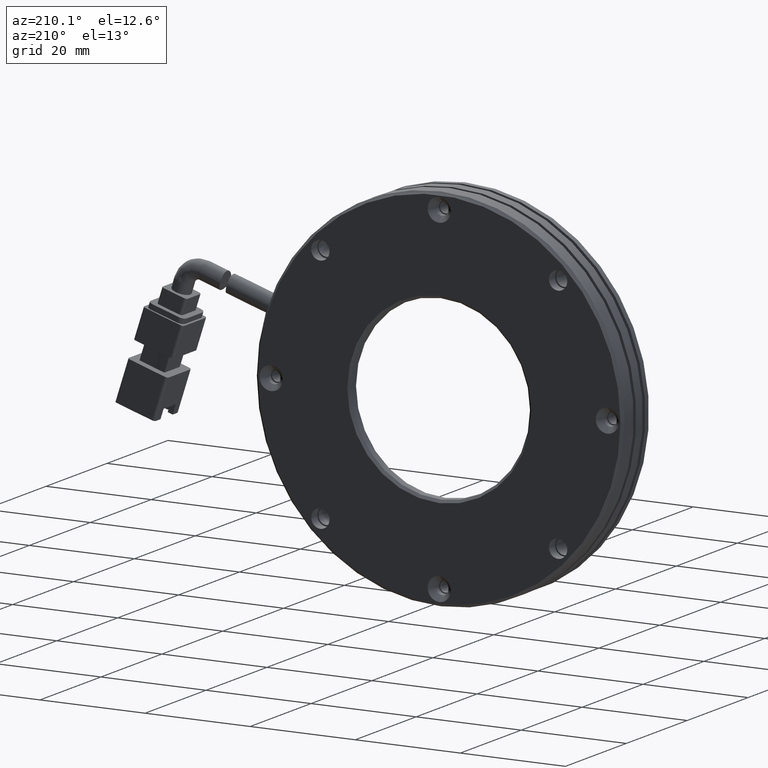
[diagram: clean part render]
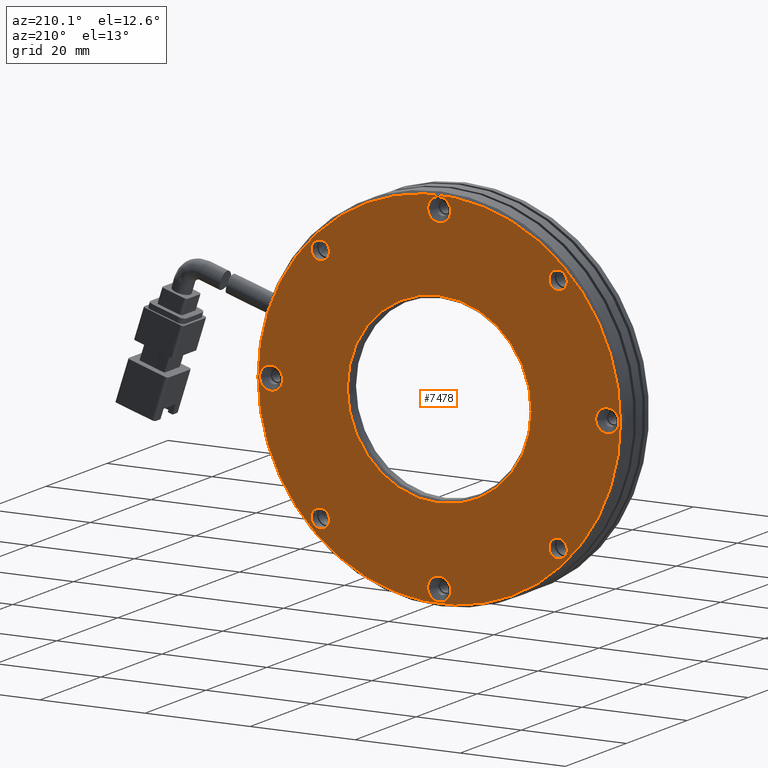
[diagram: same view with one face highlighted and labeled with its STEP entity id]
A machine part, auxiliary view. The second image highlights one B-rep face of the part: STEP entity #7478.
In plain terms, the highlighted planar face has unit normal (0, -1, 0).
Its self-contained STEP definition (entity closure, byte-faithful):
#110 = DIRECTION ( 'NONE',  ( -1.982541115402065400E-016, -1.000000000000000000, 0.0000000000000000000 ) ) ;
#143 = VERTEX_POINT ( 'NONE', #33336 ) ;
#212 = AXIS2_PLACEMENT_3D ( 'NONE', #7293, #29026, #10388 ) ;
#552 = CIRCLE ( 'NONE', #212, 2.199999999977081600 ) ;
#564 = CARTESIAN_POINT ( 'NONE',  ( -37.70929214490434600, 13.26020291534246800, -2.199999999959364700 ) ) ;
#943 = DIRECTION ( 'NONE',  ( 0.0000000000000000000, 0.0000000000000000000, 1.000000000000000000 ) ) ;
#1103 = DIRECTION ( 'NONE',  ( -0.0000000000000000000, 1.000000000000000000, 0.0000000000000000000 ) ) ;
#1303 = FACE_OUTER_BOUND ( 'NONE', #31803, .T. ) ;
#1769 = CIRCLE ( 'NONE', #23377, 17.50000000000000700 ) ;
#2228 = DIRECTION ( 'NONE',  ( 0.0000000000000000000, 0.0000000000000000000, 1.000000000000000000 ) ) ;
#2298 = EDGE_CURVE ( 'NONE', #16188, #25205, #18370, .T. ) ;
#2355 = AXIS2_PLACEMENT_3D ( 'NONE', #4401, #26062, #7508 ) ;
#2577 = ORIENTED_EDGE ( 'NONE', *, *, #30779, .F. ) ;
#2722 = DIRECTION ( 'NONE',  ( 0.0000000000000000000, 0.0000000000000000000, 1.000000000000000000 ) ) ;
#2983 = VERTEX_POINT ( 'NONE', #32999 ) ;
#3518 = CARTESIAN_POINT ( 'NONE',  ( 16.91812485306521900, 13.26020291540423700, 24.37741699796944800 ) ) ;
#3852 = VERTEX_POINT ( 'NONE', #38358 ) ;
#3877 = DIRECTION ( 'NONE',  ( -1.982541115402065400E-016, -1.000000000000000000, 0.0000000000000000000 ) ) ;
#4401 = CARTESIAN_POINT ( 'NONE',  ( -5.709292144904676300, 13.26020291539931200, 31.99999999999997900 ) ) ;
#4536 = EDGE_LOOP ( 'NONE', ( #10967, #6340 ) ) ;
#4547 = ORIENTED_EDGE ( 'NONE', *, *, #21877, .F. ) ;
#4617 = DIRECTION ( 'NONE',  ( -0.0000000000000000000, 1.000000000000000000, -0.0000000000000000000 ) ) ;
#4657 = CARTESIAN_POINT ( 'NONE',  ( -5.709292144904231300, 13.26020291539931200, -32.00000000000002100 ) ) ;
#4795 = CARTESIAN_POINT ( 'NONE',  ( -37.70929214490434600, 13.26020291534246800, 2.199999999959324700 ) ) ;
#4802 = CIRCLE ( 'NONE', #36469, 1.749999999999991100 ) ;
#5172 = VERTEX_POINT ( 'NONE', #38534 ) ;
#6042 = ORIENTED_EDGE ( 'NONE', *, *, #27675, .F. ) ;
#6340 = ORIENTED_EDGE ( 'NONE', *, *, #2298, .F. ) ;
#6924 = ORIENTED_EDGE ( 'NONE', *, *, #19580, .F. ) ;
#6959 = ORIENTED_EDGE ( 'NONE', *, *, #15343, .F. ) ;
#7293 = CARTESIAN_POINT ( 'NONE',  ( -5.709292144904231300, 13.26020291539931200, -32.00000000000002100 ) ) ;
#7478 = ADVANCED_FACE ( 'NONE', ( #18703, #10450, #35296, #34331, #26968, #26007, #17720, #9485, #1303, #33340 ), #37788, .F. ) ;
#7480 = EDGE_LOOP ( 'NONE', ( #6924, #4547 ) ) ;
#7508 = DIRECTION ( 'NONE',  ( 0.0000000000000000000, 0.0000000000000000000, 1.000000000000000000 ) ) ;
#7594 = ORIENTED_EDGE ( 'NONE', *, *, #13458, .F. ) ;
#7730 = DIRECTION ( 'NONE',  ( 0.0000000000000000000, 0.0000000000000000000, 1.000000000000000000 ) ) ;
#7772 = DIRECTION ( 'NONE',  ( -0.0000000000000000000, 1.000000000000000000, 0.0000000000000000000 ) ) ;
#7864 = CARTESIAN_POINT ( 'NONE',  ( -37.70929214490434600, 13.26020291534246800, -1.994931997373328200E-014 ) ) ;
#7972 = VERTEX_POINT ( 'NONE', #18771 ) ;
#8416 = EDGE_CURVE ( 'NONE', #143, #36141, #30378, .T. ) ;
#8705 = EDGE_CURVE ( 'NONE', #35353, #13213, #17687, .T. ) ;
#8878 = EDGE_CURVE ( 'NONE', #13213, #35353, #18168, .T. ) ;
#8959 = EDGE_CURVE ( 'NONE', #12107, #23204, #10384, .T. ) ;
#9250 = CIRCLE ( 'NONE', #13845, 1.749999999999991100 ) ;
#9320 = CARTESIAN_POINT ( 'NONE',  ( 28.79070785509566100, 13.26020291540425900, -2.081668171172168500E-014 ) ) ;
#9357 = ORIENTED_EDGE ( 'NONE', *, *, #25839, .F. ) ;
#9438 = ORIENTED_EDGE ( 'NONE', *, *, #16494, .F. ) ;
#9485 = FACE_BOUND ( 'NONE', #19047, .T. ) ;
#10035 = DIRECTION ( 'NONE',  ( -0.0000000000000000000, 1.000000000000000000, -0.0000000000000000000 ) ) ;
#10040 = CARTESIAN_POINT ( 'NONE',  ( 26.29070785509565800, 13.26020291534246800, -2.199999999958921500 ) ) ;
#10157 = AXIS2_PLACEMENT_3D ( 'NONE', #27124, #26962, #25369 ) ;
#10384 = CIRCLE ( 'NONE', #2355, 2.199999999998453000 ) ;
#10388 = DIRECTION ( 'NONE',  ( 0.0000000000000000000, 0.0000000000000000000, 1.000000000000000000 ) ) ;
#10450 = FACE_BOUND ( 'NONE', #40018, .T. ) ;
#10888 = DIRECTION ( 'NONE',  ( -0.0000000000000000000, 1.000000000000000000, 0.0000000000000000000 ) ) ;
#10962 = DIRECTION ( 'NONE',  ( 0.0000000000000000000, 0.0000000000000000000, 1.000000000000000000 ) ) ;
#10967 = ORIENTED_EDGE ( 'NONE', *, *, #20108, .F. ) ;
#11264 = DIRECTION ( 'NONE',  ( -0.0000000000000000000, 1.000000000000000000, -0.0000000000000000000 ) ) ;
#11334 = AXIS2_PLACEMENT_3D ( 'NONE', #32444, #13777, #35534 ) ;
#11360 = AXIS2_PLACEMENT_3D ( 'NONE', #22400, #3877, #25559 ) ;
#11403 = CARTESIAN_POINT ( 'NONE',  ( -28.33670914287390000, 13.26020291540423700, 22.62741699796946200 ) ) ;
#12107 = VERTEX_POINT ( 'NONE', #31218 ) ;
#12117 = ORIENTED_EDGE ( 'NONE', *, *, #12918, .F. ) ;
#12912 = CIRCLE ( 'NONE', #31623, 17.50000000000000700 ) ;
#12918 = EDGE_CURVE ( 'NONE', #40130, #12931, #23755, .T. ) ;
#12931 = VERTEX_POINT ( 'NONE', #4795 ) ;
#12988 = DIRECTION ( 'NONE',  ( 0.0000000000000000000, -1.000000000000000000, 0.0000000000000000000 ) ) ;
#13021 = CIRCLE ( 'NONE', #22403, 2.199999999959344700 ) ;
#13213 = VERTEX_POINT ( 'NONE', #9320 ) ;
#13446 = CARTESIAN_POINT ( 'NONE',  ( -28.33670914287374700, 13.26020291540423700, -22.62741699796966100 ) ) ;
#13458 = EDGE_CURVE ( 'NONE', #36141, #143, #39791, .T. ) ;
#13759 = ORIENTED_EDGE ( 'NONE', *, *, #8416, .F. ) ;
#13777 = DIRECTION ( 'NONE',  ( -0.0000000000000000000, 1.000000000000000000, 0.0000000000000000000 ) ) ;
#13845 = AXIS2_PLACEMENT_3D ( 'NONE', #13446, #35233, #16564 ) ;
#13957 = CIRCLE ( 'NONE', #16700, 2.199999999959123100 ) ;
#14539 = DIRECTION ( 'NONE',  ( 0.0000000000000000000, 0.0000000000000000000, 1.000000000000000000 ) ) ;
#15312 = CARTESIAN_POINT ( 'NONE',  ( 16.91812485306537200, 13.26020291540423700, -22.62741699796934800 ) ) ;
#15343 = EDGE_CURVE ( 'NONE', #5172, #19427, #9250, .T. ) ;
#16188 = VERTEX_POINT ( 'NONE', #34915 ) ;
#16494 = EDGE_CURVE ( 'NONE', #26678, #7972, #30204, .T. ) ;
#16522 = VERTEX_POINT ( 'NONE', #38753 ) ;
#16564 = DIRECTION ( 'NONE',  ( 0.0000000000000000000, 0.0000000000000000000, 1.000000000000000000 ) ) ;
#16700 = AXIS2_PLACEMENT_3D ( 'NONE', #26355, #7772, #29536 ) ;
#16918 = CARTESIAN_POINT ( 'NONE',  ( -28.33670914287390000, 13.26020291540423700, 20.87741699796946500 ) ) ;
#17172 = CARTESIAN_POINT ( 'NONE',  ( -28.33670914287374700, 13.26020291540423700, -20.87741699796966800 ) ) ;
#17687 = CIRCLE ( 'NONE', #26701, 34.50000000000000000 ) ;
#17720 = FACE_BOUND ( 'NONE', #28343, .T. ) ;
#17841 = AXIS2_PLACEMENT_3D ( 'NONE', #11403, #33203, #14539 ) ;
#18168 = CIRCLE ( 'NONE', #11360, 34.50000000000000000 ) ;
#18370 = CIRCLE ( 'NONE', #10157, 1.749999999999991100 ) ;
#18407 = DIRECTION ( 'NONE',  ( 0.0000000000000000000, 0.0000000000000000000, 1.000000000000000000 ) ) ;
#18611 = CARTESIAN_POINT ( 'NONE',  ( -5.709292144904342300, 13.26020291540426600, -2.081668171172168500E-014 ) ) ;
#18628 = EDGE_LOOP ( 'NONE', ( #13759, #7594 ) ) ;
#18703 = FACE_BOUND ( 'NONE', #7480, .T. ) ;
#18771 = CARTESIAN_POINT ( 'NONE',  ( -5.709292144904231300, 13.26020291539931200, -34.19999999997710200 ) ) ;
#19047 = EDGE_LOOP ( 'NONE', ( #34322, #12117 ) ) ;
#19126 = ORIENTED_EDGE ( 'NONE', *, *, #28634, .F. ) ;
#19427 = VERTEX_POINT ( 'NONE', #17172 ) ;
#19436 = DIRECTION ( 'NONE',  ( -0.0000000000000000000, 1.000000000000000000, 0.0000000000000000000 ) ) ;
#19508 = VERTEX_POINT ( 'NONE', #23970 ) ;
#19576 = AXIS2_PLACEMENT_3D ( 'NONE', #15312, #37112, #18407 ) ;
#19580 = EDGE_CURVE ( 'NONE', #2983, #3852, #34525, .T. ) ;
#19621 = CARTESIAN_POINT ( 'NONE',  ( 26.29070785509565800, 13.26020291534246800, 2.016616040823038200E-013 ) ) ;
#19866 = EDGE_CURVE ( 'NONE', #12931, #40130, #13021, .T. ) ;
#20108 = EDGE_CURVE ( 'NONE', #25205, #16188, #4802, .T. ) ;
#20722 = DIRECTION ( 'NONE',  ( -0.0000000000000000000, 1.000000000000000000, 0.0000000000000000000 ) ) ;
#21226 = DIRECTION ( 'NONE',  ( -0.0000000000000000000, 1.000000000000000000, -0.0000000000000000000 ) ) ;
#21547 = ORIENTED_EDGE ( 'NONE', *, *, #8878, .F. ) ;
#21596 = EDGE_CURVE ( 'NONE', #16522, #31588, #12912, .T. ) ;
#21722 = DIRECTION ( 'NONE',  ( 1.000000000000000000, -2.011273595335428600E-016, 0.0000000000000000000 ) ) ;
#21848 = AXIS2_PLACEMENT_3D ( 'NONE', #39939, #21226, #2722 ) ;
#21871 = AXIS2_PLACEMENT_3D ( 'NONE', #28673, #10035, #31864 ) ;
#21877 = EDGE_CURVE ( 'NONE', #3852, #2983, #31900, .T. ) ;
#22225 = CARTESIAN_POINT ( 'NONE',  ( -5.709292144904231300, 13.26020291539931200, -29.80000000002294100 ) ) ;
#22400 = CARTESIAN_POINT ( 'NONE',  ( -5.709292144904342300, 13.26020291540426600, -2.081668171172168500E-014 ) ) ;
#22403 = AXIS2_PLACEMENT_3D ( 'NONE', #38151, #19436, #943 ) ;
#22738 = DIRECTION ( 'NONE',  ( 0.0000000000000000000, 0.0000000000000000000, 1.000000000000000000 ) ) ;
#22810 = CARTESIAN_POINT ( 'NONE',  ( -40.20929214490434600, 13.26020291540427100, -1.656103408468463200E-014 ) ) ;
#23119 = AXIS2_PLACEMENT_3D ( 'NONE', #23153, #4617, #26260 ) ;
#23153 = CARTESIAN_POINT ( 'NONE',  ( -28.33670914287390000, 13.26020291540423700, 22.62741699796946200 ) ) ;
#23204 = VERTEX_POINT ( 'NONE', #34828 ) ;
#23377 = AXIS2_PLACEMENT_3D ( 'NONE', #39440, #20722, #2228 ) ;
#23755 = CIRCLE ( 'NONE', #30461, 2.199999999959344700 ) ;
#23970 = CARTESIAN_POINT ( 'NONE',  ( 26.29070785509565800, 13.26020291534246800, 2.199999999959324700 ) ) ;
#24587 = EDGE_CURVE ( 'NONE', #31588, #16522, #1769, .T. ) ;
#25205 = VERTEX_POINT ( 'NONE', #3518 ) ;
#25257 = CIRCLE ( 'NONE', #36341, 2.199999999959123100 ) ;
#25369 = DIRECTION ( 'NONE',  ( 0.0000000000000000000, 0.0000000000000000000, 1.000000000000000000 ) ) ;
#25559 = DIRECTION ( 'NONE',  ( 1.000000000000000000, -2.011273595335428600E-016, 0.0000000000000000000 ) ) ;
#25839 = EDGE_CURVE ( 'NONE', #19427, #5172, #30333, .T. ) ;
#25890 = ORIENTED_EDGE ( 'NONE', *, *, #8705, .F. ) ;
#26007 = FACE_BOUND ( 'NONE', #33737, .T. ) ;
#26062 = DIRECTION ( 'NONE',  ( -0.0000000000000000000, 1.000000000000000000, 0.0000000000000000000 ) ) ;
#26260 = DIRECTION ( 'NONE',  ( 0.0000000000000000000, 0.0000000000000000000, 1.000000000000000000 ) ) ;
#26299 = DIRECTION ( 'NONE',  ( -0.0000000000000000000, 1.000000000000000000, 0.0000000000000000000 ) ) ;
#26355 = CARTESIAN_POINT ( 'NONE',  ( 26.29070785509565800, 13.26020291534246800, 2.016616040823038200E-013 ) ) ;
#26678 = VERTEX_POINT ( 'NONE', #22225 ) ;
#26701 = AXIS2_PLACEMENT_3D ( 'NONE', #18611, #110, #21722 ) ;
#26962 = DIRECTION ( 'NONE',  ( -0.0000000000000000000, 1.000000000000000000, -0.0000000000000000000 ) ) ;
#26968 = FACE_BOUND ( 'NONE', #33443, .T. ) ;
#27124 = CARTESIAN_POINT ( 'NONE',  ( 16.91812485306521900, 13.26020291540423700, 22.62741699796945800 ) ) ;
#27675 = EDGE_CURVE ( 'NONE', #19508, #29353, #25257, .T. ) ;
#27681 = EDGE_CURVE ( 'NONE', #7972, #26678, #552, .T. ) ;
#28343 = EDGE_LOOP ( 'NONE', ( #9438, #29431 ) ) ;
#28502 = AXIS2_PLACEMENT_3D ( 'NONE', #4657, #26299, #7730 ) ;
#28634 = EDGE_CURVE ( 'NONE', #29353, #19508, #13957, .T. ) ;
#28673 = CARTESIAN_POINT ( 'NONE',  ( -28.33670914287374700, 13.26020291540423700, -22.62741699796966100 ) ) ;
#29026 = DIRECTION ( 'NONE',  ( -0.0000000000000000000, 1.000000000000000000, 0.0000000000000000000 ) ) ;
#29353 = VERTEX_POINT ( 'NONE', #10040 ) ;
#29431 = ORIENTED_EDGE ( 'NONE', *, *, #27681, .F. ) ;
#29536 = DIRECTION ( 'NONE',  ( 0.0000000000000000000, 0.0000000000000000000, 1.000000000000000000 ) ) ;
#29553 = CARTESIAN_POINT ( 'NONE',  ( -5.709292144904342300, 13.26020291540425200, -2.081668171172168500E-014 ) ) ;
#29624 = DIRECTION ( 'NONE',  ( -0.0000000000000000000, 1.000000000000000000, 0.0000000000000000000 ) ) ;
#29958 = CARTESIAN_POINT ( 'NONE',  ( 16.91812485306521900, 13.26020291540423700, 22.62741699796945800 ) ) ;
#30204 = CIRCLE ( 'NONE', #28502, 2.199999999977081600 ) ;
#30333 = CIRCLE ( 'NONE', #21871, 1.749999999999991100 ) ;
#30378 = CIRCLE ( 'NONE', #17841, 1.749999999999994700 ) ;
#30461 = AXIS2_PLACEMENT_3D ( 'NONE', #7864, #29624, #10962 ) ;
#30779 = EDGE_CURVE ( 'NONE', #23204, #12107, #37560, .T. ) ;
#31218 = CARTESIAN_POINT ( 'NONE',  ( -5.709292144904676300, 13.26020291539931200, 34.19999999999843300 ) ) ;
#31588 = VERTEX_POINT ( 'NONE', #33728 ) ;
#31623 = AXIS2_PLACEMENT_3D ( 'NONE', #29553, #10888, #32678 ) ;
#31679 = CARTESIAN_POINT ( 'NONE',  ( -22.70929214490434600, 13.26020291540425200, -2.081668171172168500E-014 ) ) ;
#31723 = EDGE_LOOP ( 'NONE', ( #33780, #37648 ) ) ;
#31803 = EDGE_LOOP ( 'NONE', ( #21547, #25890 ) ) ;
#31864 = DIRECTION ( 'NONE',  ( 0.0000000000000000000, 0.0000000000000000000, 1.000000000000000000 ) ) ;
#31900 = CIRCLE ( 'NONE', #19576, 1.749999999999991100 ) ;
#32444 = CARTESIAN_POINT ( 'NONE',  ( -5.709292144904676300, 13.26020291539931200, 31.99999999999997900 ) ) ;
#32678 = DIRECTION ( 'NONE',  ( 0.0000000000000000000, 0.0000000000000000000, 1.000000000000000000 ) ) ;
#32999 = CARTESIAN_POINT ( 'NONE',  ( 16.91812485306537200, 13.26020291540423700, -20.87741699796935500 ) ) ;
#33059 = DIRECTION ( 'NONE',  ( 0.0000000000000000000, 0.0000000000000000000, 1.000000000000000000 ) ) ;
#33203 = DIRECTION ( 'NONE',  ( -0.0000000000000000000, 1.000000000000000000, -0.0000000000000000000 ) ) ;
#33336 = CARTESIAN_POINT ( 'NONE',  ( -28.33670914287390000, 13.26020291540423700, 24.37741699796945500 ) ) ;
#33340 = FACE_BOUND ( 'NONE', #31723, .T. ) ;
#33443 = EDGE_LOOP ( 'NONE', ( #36014, #2577 ) ) ;
#33728 = CARTESIAN_POINT ( 'NONE',  ( -5.709292144904342300, 13.26020291540425200, 17.49999999999998900 ) ) ;
#33737 = EDGE_LOOP ( 'NONE', ( #6042, #19126 ) ) ;
#33780 = ORIENTED_EDGE ( 'NONE', *, *, #24587, .F. ) ;
#34322 = ORIENTED_EDGE ( 'NONE', *, *, #19866, .F. ) ;
#34331 = FACE_BOUND ( 'NONE', #4536, .T. ) ;
#34525 = CIRCLE ( 'NONE', #21848, 1.749999999999991100 ) ;
#34784 = DIRECTION ( 'NONE',  ( 0.0000000000000000000, -0.0000000000000000000, -1.000000000000000000 ) ) ;
#34828 = CARTESIAN_POINT ( 'NONE',  ( -5.709292144904676300, 13.26020291539931200, 29.80000000000152800 ) ) ;
#34915 = CARTESIAN_POINT ( 'NONE',  ( 16.91812485306521900, 13.26020291540423700, 20.87741699796946500 ) ) ;
#35233 = DIRECTION ( 'NONE',  ( -0.0000000000000000000, 1.000000000000000000, -0.0000000000000000000 ) ) ;
#35296 = FACE_BOUND ( 'NONE', #18628, .T. ) ;
#35353 = VERTEX_POINT ( 'NONE', #22810 ) ;
#35534 = DIRECTION ( 'NONE',  ( 0.0000000000000000000, 0.0000000000000000000, 1.000000000000000000 ) ) ;
#36014 = ORIENTED_EDGE ( 'NONE', *, *, #8959, .F. ) ;
#36141 = VERTEX_POINT ( 'NONE', #16918 ) ;
#36341 = AXIS2_PLACEMENT_3D ( 'NONE', #19621, #1103, #22738 ) ;
#36469 = AXIS2_PLACEMENT_3D ( 'NONE', #29958, #11264, #33059 ) ;
#37112 = DIRECTION ( 'NONE',  ( -0.0000000000000000000, 1.000000000000000000, -0.0000000000000000000 ) ) ;
#37560 = CIRCLE ( 'NONE', #11334, 2.199999999998453000 ) ;
#37648 = ORIENTED_EDGE ( 'NONE', *, *, #21596, .F. ) ;
#37788 = PLANE ( 'NONE',  #38226 ) ;
#38151 = CARTESIAN_POINT ( 'NONE',  ( -37.70929214490434600, 13.26020291534246800, -1.994931997373328200E-014 ) ) ;
#38226 = AXIS2_PLACEMENT_3D ( 'NONE', #31679, #12988, #34784 ) ;
#38358 = CARTESIAN_POINT ( 'NONE',  ( 16.91812485306537200, 13.26020291540423700, -24.37741699796933800 ) ) ;
#38534 = CARTESIAN_POINT ( 'NONE',  ( -28.33670914287374700, 13.26020291540423700, -24.37741699796965000 ) ) ;
#38753 = CARTESIAN_POINT ( 'NONE',  ( -5.709292144904340600, 13.26020291540425200, -17.50000000000002800 ) ) ;
#39440 = CARTESIAN_POINT ( 'NONE',  ( -5.709292144904342300, 13.26020291540425200, -2.081668171172168500E-014 ) ) ;
#39791 = CIRCLE ( 'NONE', #23119, 1.749999999999994700 ) ;
#39939 = CARTESIAN_POINT ( 'NONE',  ( 16.91812485306537200, 13.26020291540423700, -22.62741699796934800 ) ) ;
#40018 = EDGE_LOOP ( 'NONE', ( #9357, #6959 ) ) ;
#40130 = VERTEX_POINT ( 'NONE', #564 ) ;